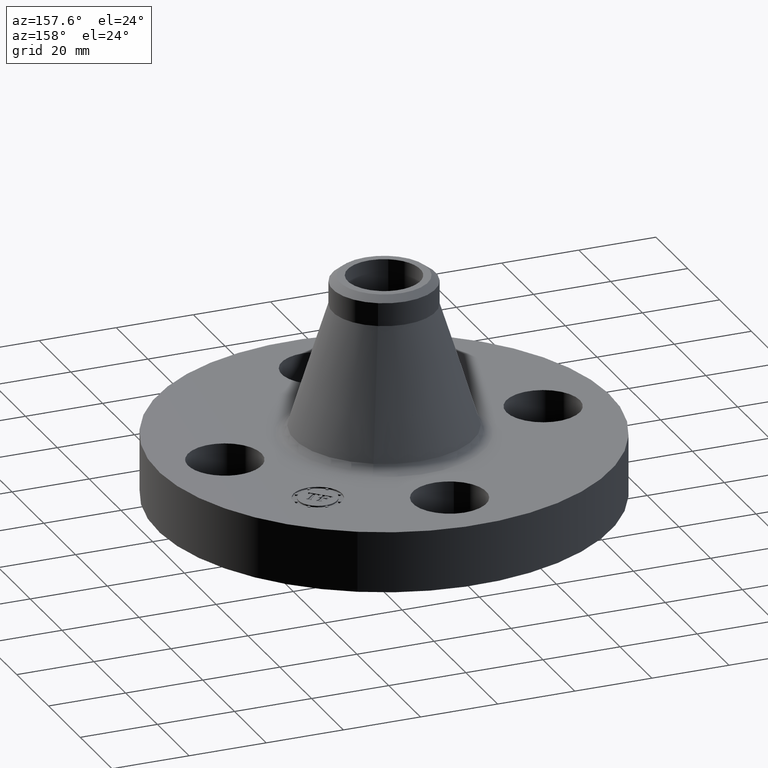
[diagram: clean part render]
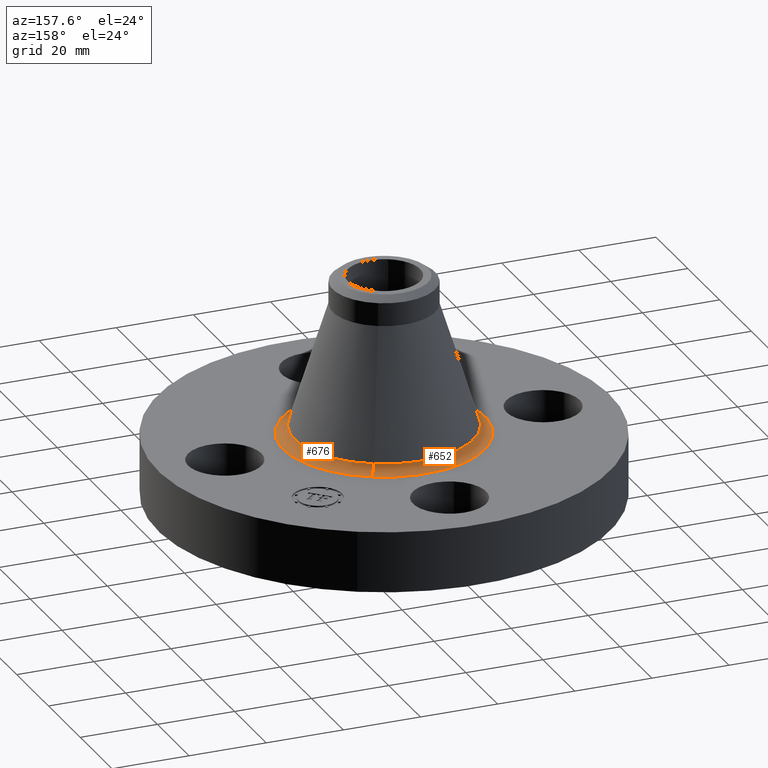
[diagram: same view with one multi-face feature highlighted, each face labeled with its STEP entity id]
A machine part, auxiliary view. The highlighted faces form ONE feature: a constant-radius fillet chain: 2 tangent blend faces with common blend radius 3.048 mm. The faces share edges in the B-rep.
Their STEP definitions:
[1] entity #676 (Torus):
#269=AXIS2_PLACEMENT_3D('Circle Axis2P3D',#267,#268,$) ;
#629=AXIS2_PLACEMENT_3D('Circle Axis2P3D',#627,#628,$) ;
#643=AXIS2_PLACEMENT_3D('Circle Axis2P3D',#641,#642,$) ;
#663=AXIS2_PLACEMENT_3D('Torus Axis2P3D',#660,#661,#662) ;
#667=AXIS2_PLACEMENT_3D('Circle Axis2P3D',#665,#666,$) ;
#262=CARTESIAN_POINT('Vertex',(-0.493032242462,-0.902489466236,0.620000000003)) ;
#264=CARTESIAN_POINT('Vertex',(0.493032242461,0.902489466232,0.620000000003)) ;
#267=CARTESIAN_POINT('Axis2P3D Location',(-1.28118688012E-011,3.07858026036E-011,0.620000000002)) ;
#627=CARTESIAN_POINT('Axis2P3D Location',(-0.493032242463,-0.902489466236,0.740000000003)) ;
#631=CARTESIAN_POINT('Vertex',(-0.438090692601,-0.801919633801,0.704403161619)) ;
#638=CARTESIAN_POINT('Vertex',(0.438090692601,0.801919633801,0.704403161619)) ;
#641=CARTESIAN_POINT('Axis2P3D Location',(0.493032242463,0.902489466236,0.740000000003)) ;
#660=CARTESIAN_POINT('Axis2P3D Location',(0.,0.,0.740000000003)) ;
#665=CARTESIAN_POINT('Axis2P3D Location',(0.,0.,0.704403161619)) ;
#268=DIRECTION('Axis2P3D Direction',(0.,0.,-0.0393700787402)) ;
#628=DIRECTION('Axis2P3D Direction',(0.0345504945626,-0.0188750212049,0.)) ;
#642=DIRECTION('Axis2P3D Direction',(-0.0345504945626,0.0188750212049,0.)) ;
#661=DIRECTION('Axis2P3D Direction',(0.,0.,-0.0393700787402)) ;
#662=DIRECTION('Axis2P3D XDirection',(0.0188750212049,0.0345504945626,0.)) ;
#666=DIRECTION('Axis2P3D Direction',(-0.,0.,-0.0393700787402)) ;
#671=ORIENTED_EDGE('',*,*,#271,.F.) ;
#672=ORIENTED_EDGE('',*,*,#645,.T.) ;
#673=ORIENTED_EDGE('',*,*,#669,.T.) ;
#674=ORIENTED_EDGE('',*,*,#633,.F.) ;
#676=ADVANCED_FACE('PartBody',(#675),#664,.F.) ;
#270=CIRCLE('generated circle',#269,1.02838126625) ;
#630=CIRCLE('generated circle',#629,0.12) ;
#644=CIRCLE('generated circle',#643,0.12) ;
#668=CIRCLE('generated circle',#667,0.913782552919) ;
#664=TOROIDAL_SURFACE('homeo Torus',#663,1.02838126625,0.12) ;
#271=EDGE_CURVE('',#265,#263,#270,.T.) ;
#633=EDGE_CURVE('',#263,#632,#630,.T.) ;
#645=EDGE_CURVE('',#265,#639,#644,.T.) ;
#669=EDGE_CURVE('',#639,#632,#668,.T.) ;
#670=EDGE_LOOP('',(#671,#672,#673,#674)) ;
#675=FACE_OUTER_BOUND('',#670,.T.) ;
#263=VERTEX_POINT('',#262) ;
#265=VERTEX_POINT('',#264) ;
#632=VERTEX_POINT('',#631) ;
#639=VERTEX_POINT('',#638) ;
[2] entity #652 (Torus):
#260=AXIS2_PLACEMENT_3D('Circle Axis2P3D',#258,#259,$) ;
#625=AXIS2_PLACEMENT_3D('Torus Axis2P3D',#622,#623,#624) ;
#629=AXIS2_PLACEMENT_3D('Circle Axis2P3D',#627,#628,$) ;
#636=AXIS2_PLACEMENT_3D('Circle Axis2P3D',#634,#635,$) ;
#643=AXIS2_PLACEMENT_3D('Circle Axis2P3D',#641,#642,$) ;
#258=CARTESIAN_POINT('Axis2P3D Location',(4.36655086542E-011,-6.76973787614E-014,0.620000000002)) ;
#262=CARTESIAN_POINT('Vertex',(-0.493032242462,-0.902489466236,0.620000000003)) ;
#264=CARTESIAN_POINT('Vertex',(0.493032242461,0.902489466232,0.620000000003)) ;
#622=CARTESIAN_POINT('Axis2P3D Location',(0.,0.,0.740000000003)) ;
#627=CARTESIAN_POINT('Axis2P3D Location',(-0.493032242463,-0.902489466236,0.740000000003)) ;
#631=CARTESIAN_POINT('Vertex',(-0.438090692601,-0.801919633801,0.704403161619)) ;
#634=CARTESIAN_POINT('Axis2P3D Location',(0.,0.,0.704403161619)) ;
#638=CARTESIAN_POINT('Vertex',(0.438090692601,0.801919633801,0.704403161619)) ;
#641=CARTESIAN_POINT('Axis2P3D Location',(0.493032242463,0.902489466236,0.740000000003)) ;
#259=DIRECTION('Axis2P3D Direction',(0.,0.,-0.0393700787402)) ;
#623=DIRECTION('Axis2P3D Direction',(0.,0.,-0.0393700787402)) ;
#624=DIRECTION('Axis2P3D XDirection',(-0.0188750212049,-0.0345504945626,0.)) ;
#628=DIRECTION('Axis2P3D Direction',(0.0345504945626,-0.0188750212049,0.)) ;
#635=DIRECTION('Axis2P3D Direction',(-0.,0.,-0.0393700787402)) ;
#642=DIRECTION('Axis2P3D Direction',(-0.0345504945626,0.0188750212049,0.)) ;
#647=ORIENTED_EDGE('',*,*,#266,.F.) ;
#648=ORIENTED_EDGE('',*,*,#633,.T.) ;
#649=ORIENTED_EDGE('',*,*,#640,.T.) ;
#650=ORIENTED_EDGE('',*,*,#645,.F.) ;
#652=ADVANCED_FACE('PartBody',(#651),#626,.F.) ;
#261=CIRCLE('generated circle',#260,1.02838126625) ;
#630=CIRCLE('generated circle',#629,0.12) ;
#637=CIRCLE('generated circle',#636,0.913782552919) ;
#644=CIRCLE('generated circle',#643,0.12) ;
#626=TOROIDAL_SURFACE('homeo Torus',#625,1.02838126625,0.12) ;
#266=EDGE_CURVE('',#263,#265,#261,.T.) ;
#633=EDGE_CURVE('',#263,#632,#630,.T.) ;
#640=EDGE_CURVE('',#632,#639,#637,.T.) ;
#645=EDGE_CURVE('',#265,#639,#644,.T.) ;
#646=EDGE_LOOP('',(#647,#648,#649,#650)) ;
#651=FACE_OUTER_BOUND('',#646,.T.) ;
#263=VERTEX_POINT('',#262) ;
#265=VERTEX_POINT('',#264) ;
#632=VERTEX_POINT('',#631) ;
#639=VERTEX_POINT('',#638) ;